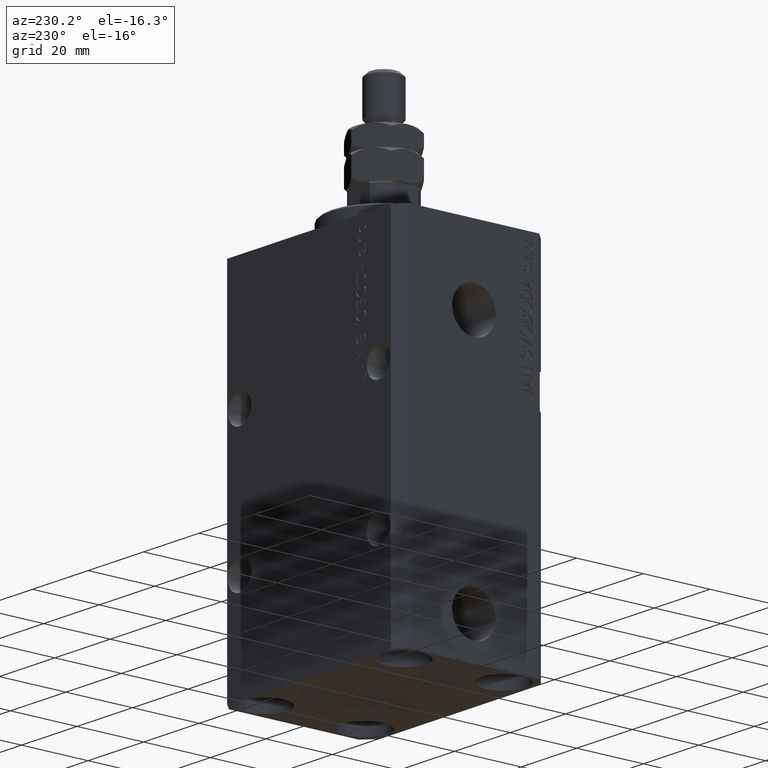
[diagram: clean part render]
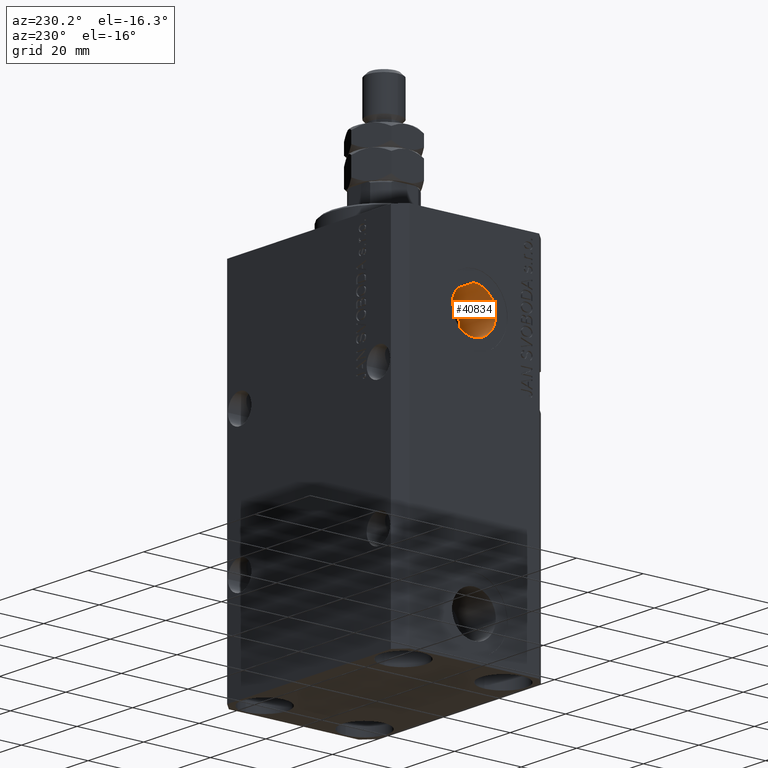
[diagram: same view with one face highlighted and labeled with its STEP entity id]
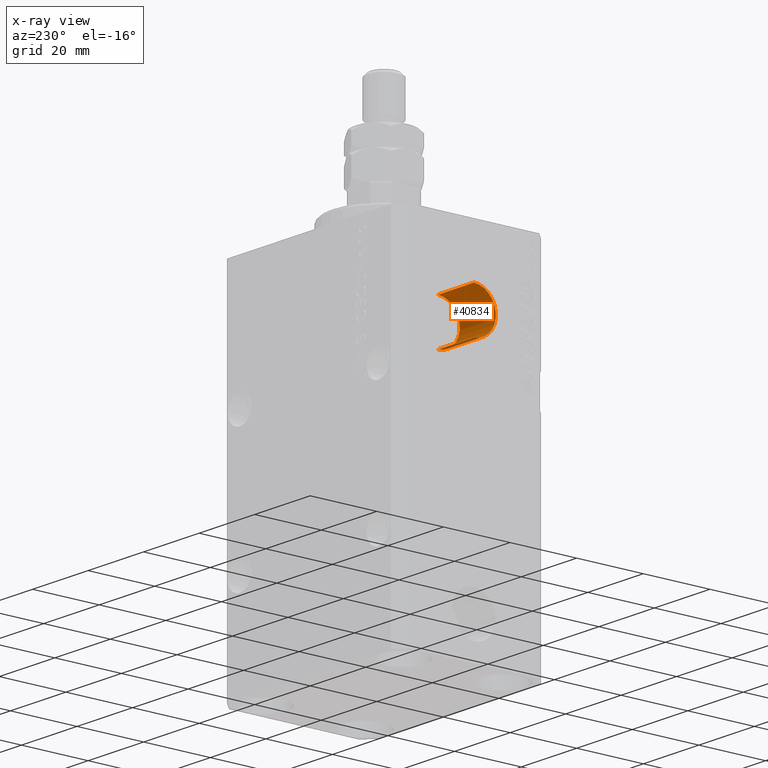
[diagram: x-ray of the same camera — body ghosted, the highlighted face saturated]
A machine part, auxiliary view. The second image highlights one B-rep face of the part: STEP entity #40834.
The next image is the same camera in x-ray: the body ghosted, the highlighted face saturated — about 0% of this face is hidden behind the body in this view.
In plain terms, the highlighted cylindrical surface (edge-blend (fillet) strip) has radius 6.58 mm, axis along (-1, -0, -0).
Its self-contained STEP definition (entity closure, byte-faithful):
#1263 = ORIENTED_EDGE ( 'NONE', *, *, #43503, .F. ) ;
#2161 = EDGE_CURVE ( 'NONE', #25736, #39421, #16208, .T. ) ;
#3444 = ORIENTED_EDGE ( 'NONE', *, *, #2161, .T. ) ;
#6550 = DIRECTION ( 'NONE',  ( -1.000000000000000000, 0.000000000000000000, 0.000000000000000000 ) ) ;
#7539 = EDGE_LOOP ( 'NONE', ( #42057, #3444, #28334, #1263 ) ) ;
#8007 = LINE ( 'NONE', #18954, #21855 ) ;
#8819 = DIRECTION ( 'NONE',  ( -1.000000000000000000, -0.000000000000000000, -0.000000000000000000 ) ) ;
#8921 = AXIS2_PLACEMENT_3D ( 'NONE', #40033, #44541, #29565 ) ;
#9758 = CARTESIAN_POINT ( 'NONE',  ( -19.39999999999650271, 0.000000000000000000, -15.41999999999999993 ) ) ;
#10905 = DIRECTION ( 'NONE',  ( 0.000000000000000000, 0.000000000000000000, 1.000000000000000000 ) ) ;
#13753 = CARTESIAN_POINT ( 'NONE',  ( -32.39999999999650271, 0.000000000000000000, -15.41999999999999993 ) ) ;
#14240 = FACE_OUTER_BOUND ( 'NONE', #7539, .T. ) ;
#16208 = LINE ( 'NONE', #19059, #39472 ) ;
#17586 = CARTESIAN_POINT ( 'NONE',  ( -19.39999999999650271, 0.000000000000000000, -22.00000000000000000 ) ) ;
#18286 = CYLINDRICAL_SURFACE ( 'NONE', #27863, 6.579999999999999183 ) ;
#18954 = CARTESIAN_POINT ( 'NONE',  ( -19.39999999999650271, 0.000000000000000000, -15.41999999999999993 ) ) ;
#19059 = CARTESIAN_POINT ( 'NONE',  ( -19.39999999999650271, 8.058175938389580558E-16, -28.57999999999999829 ) ) ;
#20105 = VERTEX_POINT ( 'NONE', #9758 ) ;
#20356 = VERTEX_POINT ( 'NONE', #13753 ) ;
#21855 = VECTOR ( 'NONE', #37030, 1000.000000000000000 ) ;
#25736 = VERTEX_POINT ( 'NONE', #27276 ) ;
#27276 = CARTESIAN_POINT ( 'NONE',  ( -19.39999999999650271, 8.058175938389579572E-16, -28.57999999999999829 ) ) ;
#27863 = AXIS2_PLACEMENT_3D ( 'NONE', #17586, #28281, #10905 ) ;
#28000 = CIRCLE ( 'NONE', #38622, 6.579999999999999183 ) ;
#28281 = DIRECTION ( 'NONE',  ( -1.000000000000000000, -0.000000000000000000, -0.000000000000000000 ) ) ;
#28334 = ORIENTED_EDGE ( 'NONE', *, *, #45586, .T. ) ;
#29565 = DIRECTION ( 'NONE',  ( 0.000000000000000000, 0.000000000000000000, 1.000000000000000000 ) ) ;
#32466 = CIRCLE ( 'NONE', #8921, 6.579999999999999183 ) ;
#35123 = DIRECTION ( 'NONE',  ( 0.000000000000000000, 0.000000000000000000, 1.000000000000000000 ) ) ;
#37030 = DIRECTION ( 'NONE',  ( -1.000000000000000000, -0.000000000000000000, -0.000000000000000000 ) ) ;
#38450 = CARTESIAN_POINT ( 'NONE',  ( -32.39999999999650271, 0.000000000000000000, -22.00000000000000000 ) ) ;
#38622 = AXIS2_PLACEMENT_3D ( 'NONE', #38450, #6550, #35123 ) ;
#38728 = EDGE_CURVE ( 'NONE', #25736, #20105, #32466, .T. ) ;
#39421 = VERTEX_POINT ( 'NONE', #42673 ) ;
#39472 = VECTOR ( 'NONE', #8819, 1000.000000000000000 ) ;
#40033 = CARTESIAN_POINT ( 'NONE',  ( -19.39999999999650271, 0.000000000000000000, -22.00000000000000000 ) ) ;
#40834 = ADVANCED_FACE ( 'NONE', ( #14240 ), #18286, .F. ) ;
#42057 = ORIENTED_EDGE ( 'NONE', *, *, #38728, .F. ) ;
#42673 = CARTESIAN_POINT ( 'NONE',  ( -32.39999999999650271, 8.058175938389579572E-16, -28.57999999999999829 ) ) ;
#43503 = EDGE_CURVE ( 'NONE', #20105, #20356, #8007, .T. ) ;
#44541 = DIRECTION ( 'NONE',  ( -1.000000000000000000, 0.000000000000000000, 0.000000000000000000 ) ) ;
#45586 = EDGE_CURVE ( 'NONE', #39421, #20356, #28000, .T. ) ;